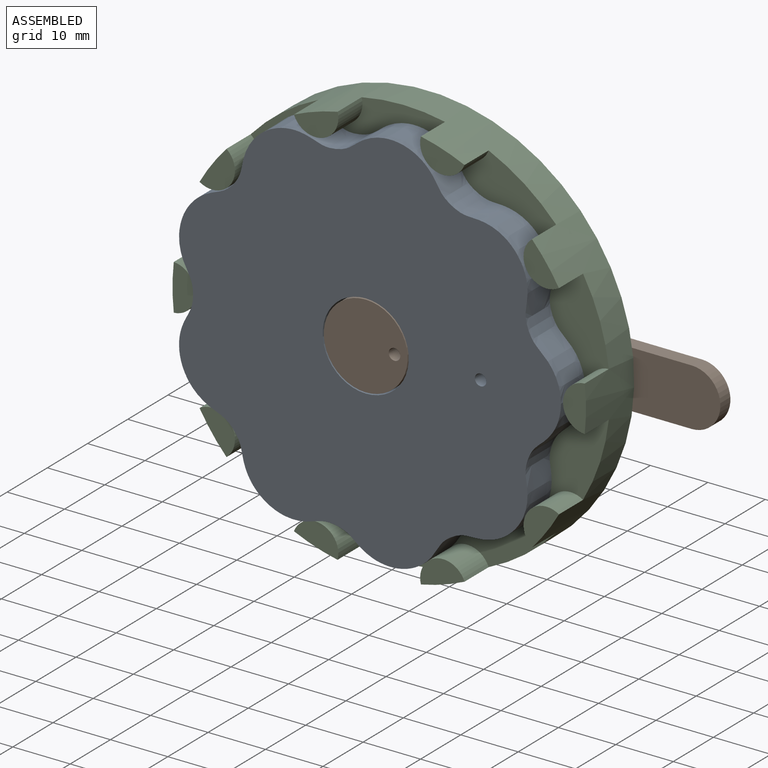
[diagram: assembled view]
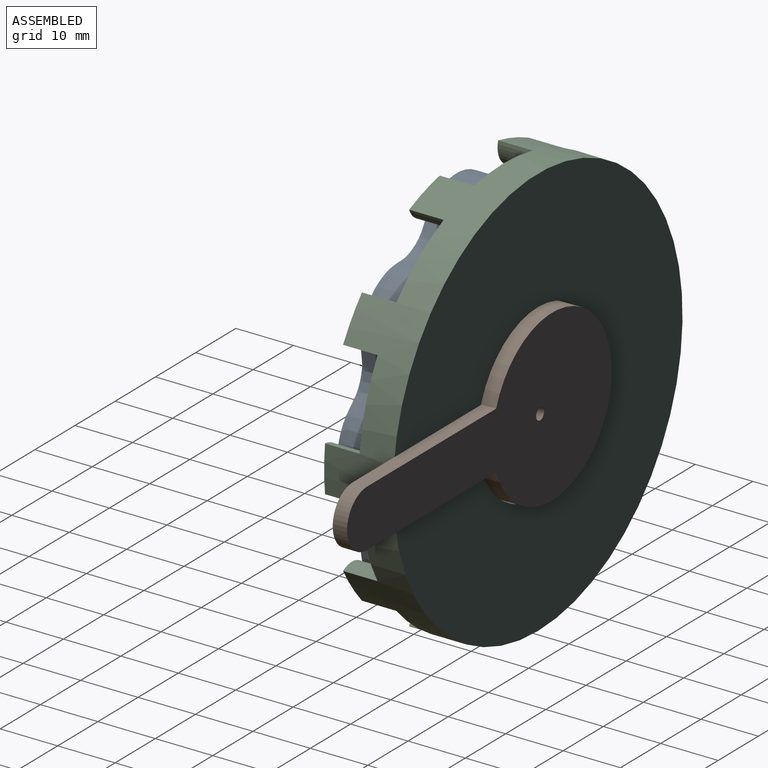
[diagram: assembled view, second angle]
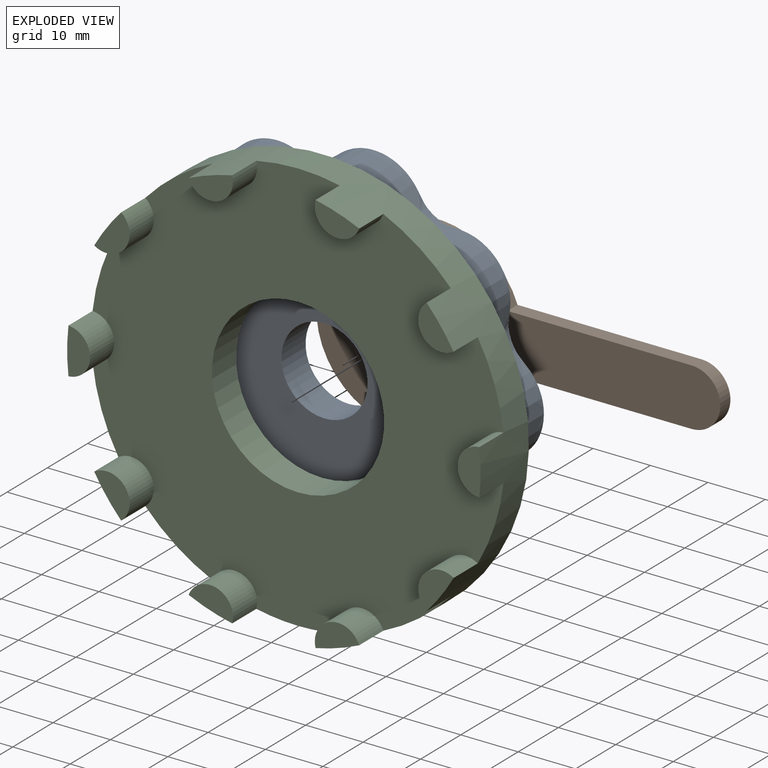
[diagram: exploded view]
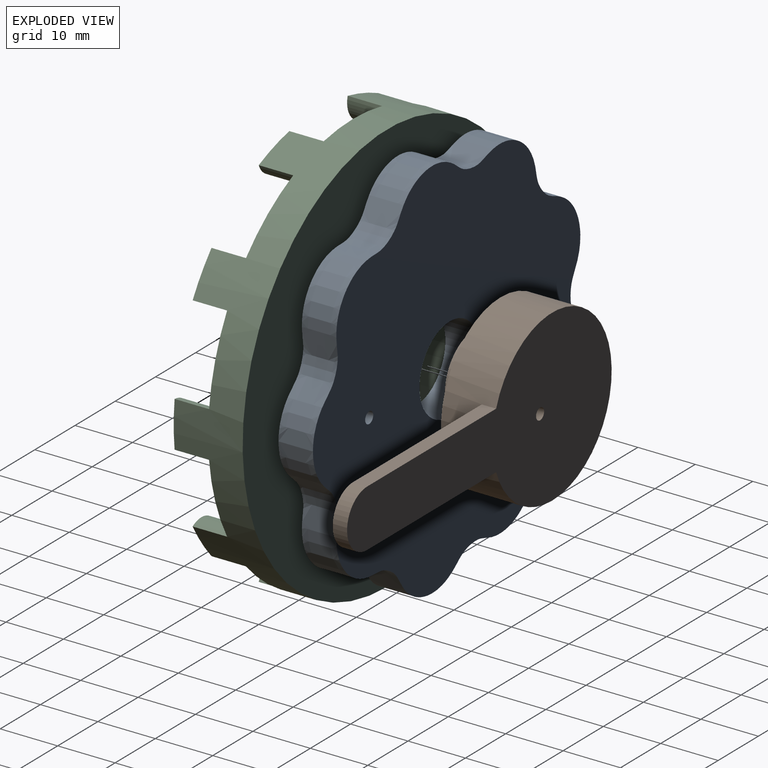
[diagram: exploded view, second angle]
ASSEMBLY  parts=3 mates=2
PART A: 5 faces, bbox 66.5x6x67.3 mm
  f0: extruded ~66.62x66.24mm, area 1307.6mm2, adj f3,f4
  f1: cylinder r=7.5mm len=15mm, axis (0,1,0), area 282.7mm2, adj f3,f4
  f2: cylinder r=1mm len=6mm, axis (0,1,0), area 37.7mm2, adj f3,f4
  f3: plane 67.33x66.55mm, normal (0,-1,0), area 3088.4mm2, adj f0,f1,f2
  f4: plane 67.33x66.55mm, normal (0,1,0), area 3088.4mm2, adj f0,f1,f2
PART B: 10 faces, bbox 65.8x15x29.6 mm
  f0: cylinder r=14.8mm len=29.6mm, axis (0,-1,0), area 811.4mm2, adj f2,f3,f6,f7,f9
  f1: cylinder r=1mm len=15mm, axis (0,-1,0), area 94.2mm2, adj f2,f5
  f2: plane 65.8x29.6mm, normal (0,1,0), area 1039.1mm2, adj f0,f1,f6,f7,f8
  f3: plane 29.6x29.6mm, normal (0,-1,0), area 520.7mm2, adj f0,f4
  f4: cylinder r=7.3mm len=14.6mm, axis (0,1,0), area 275.2mm2, adj f3,f5
  f5: plane 14.6x14.6mm, normal (0,-1,0), area 164.3mm2, adj f1,f4
  f6: plane 32.07x2.5mm, normal (0,0,-1), area 80.2mm2, adj f0,f2,f8,f9
  f7: plane 32.07x2.5mm, normal (0,0,1), area 80.2mm2, adj f0,f2,f8,f9
  f8: cylinder r=5mm len=10mm, axis (0,1,0), area 39.3mm2, adj f2,f6,f7,f9
  f9: plane 37.07x10mm, normal (0,-1,0), area 354.1mm2, adj f0,f6,f7,f8
PART C: 24 faces, bbox 72x12x72 mm
  f0: plane 72x71.56mm, normal (0,-1,0), area 3119.2mm2, adj f1,f2,f4,f6,f8,f10,f12,f14
  f1: cylinder r=15mm len=30mm, axis (0,-1,0), area 565.5mm2, adj f0,f3
  f2: cylinder r=36mm len=72mm, axis (0,-1,0), area 1837.4mm2, adj f0,f3,f4,f5,f6,f7,f8,f9
  f3: plane 72x72mm, normal (0,1,0), area 3364.6mm2, adj f1,f2
  f4: cylinder r=4mm len=7.73mm, axis (0,1,0), area 72.7mm2, adj f0,f2,f5
  f5: plane 7.73x5.02mm, normal (0,-1,0), area 24.5mm2, adj f2,f4
  f6: cylinder r=4mm len=7.1mm, axis (0,1,0), area 72.7mm2, adj f0,f2,f7
  f7: plane 7.1x6.17mm, normal (0,-1,0), area 24.5mm2, adj f2,f6
  f8: cylinder r=4mm len=7.99mm, axis (0,1,0), area 72.7mm2, adj f0,f2,f9
  f9: plane 7.99x4mm, normal (0,-1,0), area 24.5mm2, adj f2,f8
  f10: cylinder r=4mm len=7.1mm, axis (0,1,0), area 72.7mm2, adj f0,f2,f11
  f11: plane 7.1x6.17mm, normal (0,-1,0), area 24.5mm2, adj f2,f10
  f12: cylinder r=4mm len=7.73mm, axis (0,1,0), area 72.7mm2, adj f0,f2,f13
  f13: plane 7.73x5.02mm, normal (0,-1,0), area 24.5mm2, adj f2,f12
  f14: cylinder r=4mm len=7.73mm, axis (0,1,0), area 72.7mm2, adj f0,f2,f15
  f15: plane 7.73x5.02mm, normal (0,-1,0), area 24.5mm2, adj f2,f14
  f16: cylinder r=4mm len=7.1mm, axis (0,1,0), area 72.7mm2, adj f0,f2,f17
  f17: plane 7.1x6.17mm, normal (0,-1,0), area 24.5mm2, adj f2,f16
  f18: cylinder r=4mm len=7.99mm, axis (0,1,0), area 72.7mm2, adj f0,f2,f19
  f19: plane 7.99x4mm, normal (0,-1,0), area 24.5mm2, adj f2,f18
  f20: cylinder r=4mm len=7.1mm, axis (0,1,0), area 72.7mm2, adj f0,f2,f21
  f21: plane 7.1x6.17mm, normal (0,-1,0), area 24.5mm2, adj f2,f20
  f22: cylinder r=4mm len=7.73mm, axis (0,1,0), area 72.7mm2, adj f0,f2,f23
  f23: plane 7.73x5.02mm, normal (0,-1,0), area 24.5mm2, adj f2,f22
PLACE A rot(axis=(0,1,0),0deg) t=(0,-0.5,0)mm
PLACE B t=(0,-0.5,0)mm
PLACE C at identity fixed
MATE revolute C.f1 <-> B.f0  axis (0,1,0) through (2,6,0)mm
MATE revolute A.f1 <-> B.f4  axis (0,1,0) through (0,-0.5,0)mm
